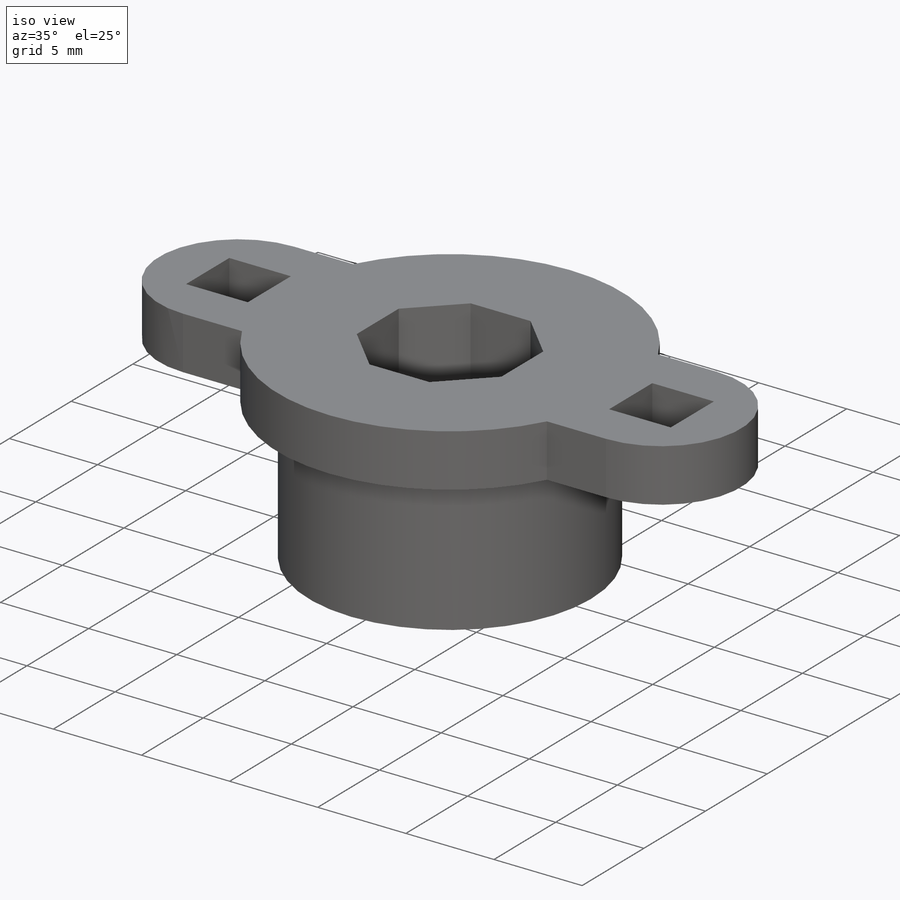
[diagram: iso view]
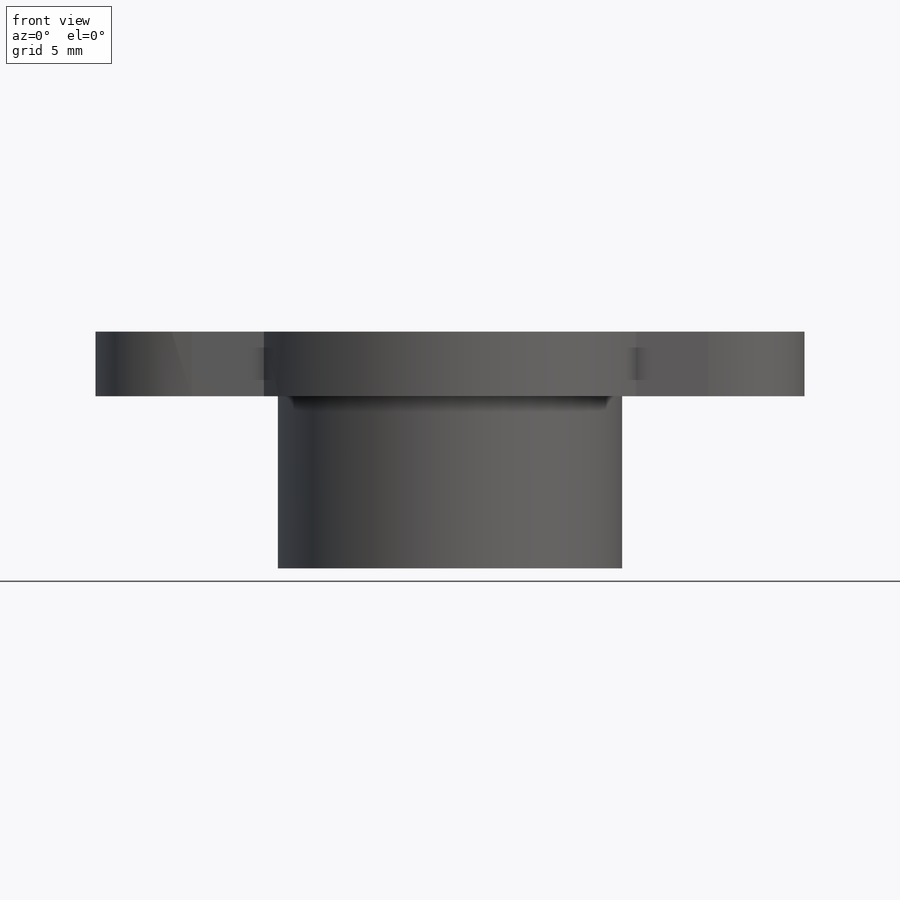
[diagram: front view]
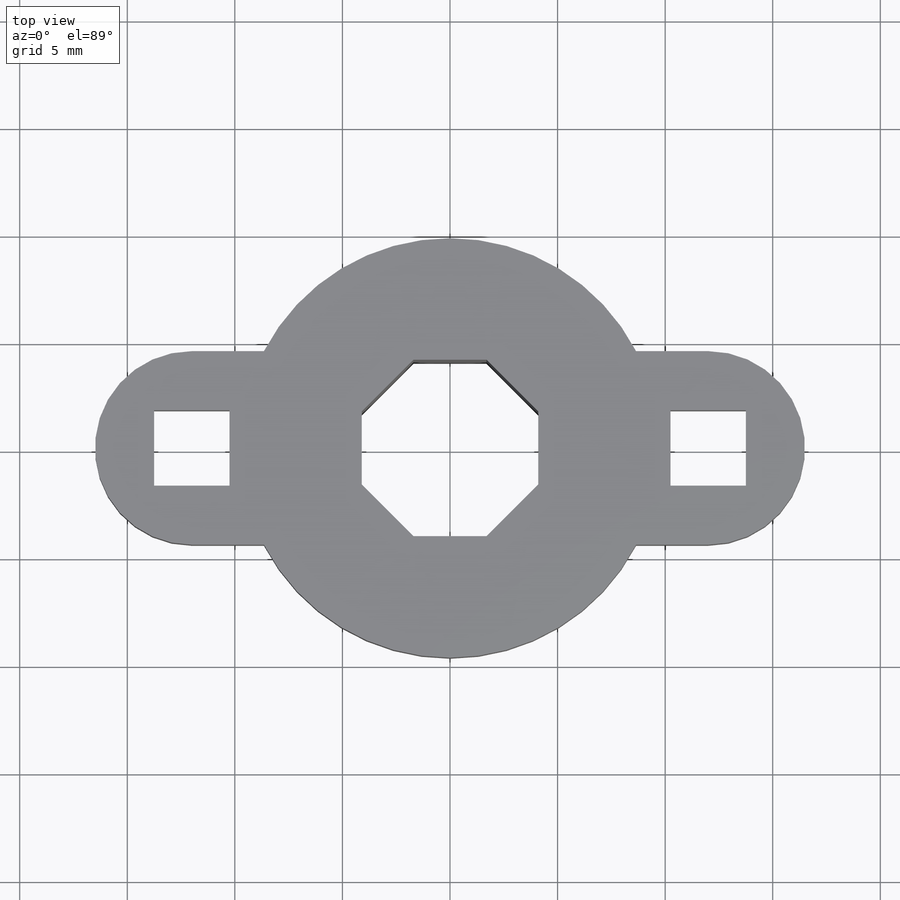
[diagram: top view]
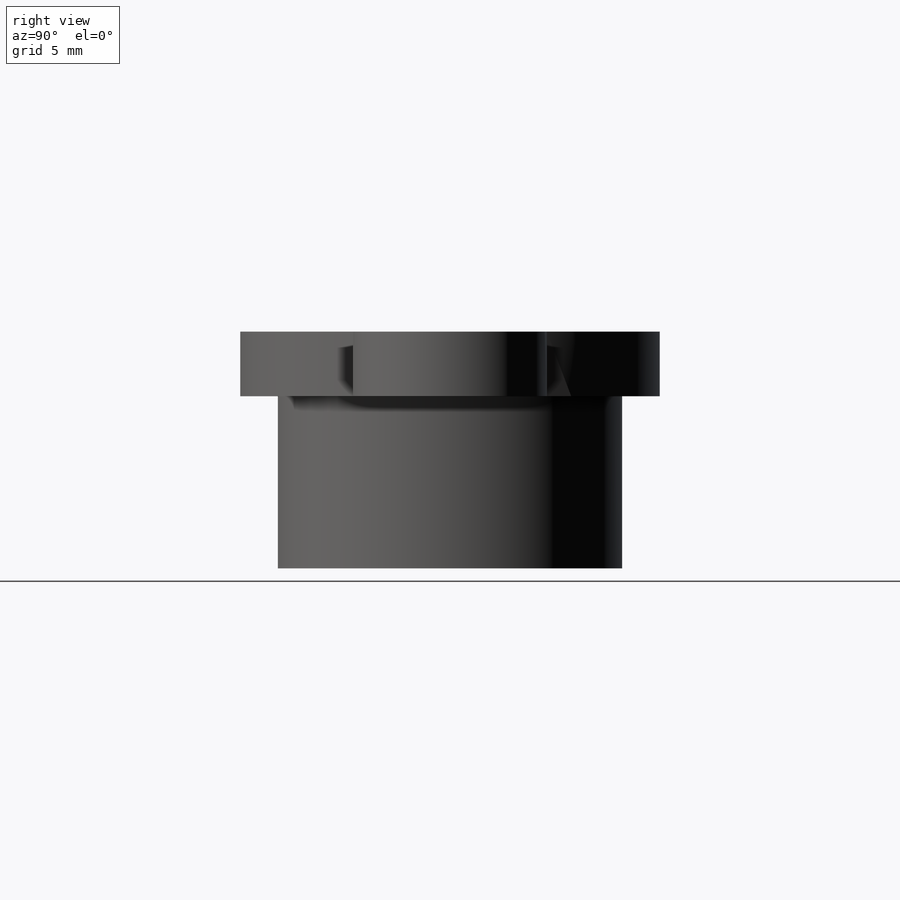
[diagram: right view]
SOLIDWORKS PART (.sldprt)
format: sldprt  version: not decoded by parser v0  size: 178,176 bytes
history: native  units: mm
features: sketch x5, extrude x3, cut_extrude x2, material x1 (+11 scaffold rows collapsed)
feature tree (22):
  scaffold x11  (default folders/planes/origin — collapsed)
  material  "Material <not specified>"
  sketch  "Sketch1"  dims[D1=16.0mm]
  extrude  "Boss-Extrude1"  Depth=8mm
  sketch  "Sketch2"  dims[D1=19.5mm]
  extrude  "Boss-Extrude2"  Depth=3mm
  sketch  "Sketch4"  dims[D1=24.0mm D2=9.0mm]
  sketch  "Sketch5"  dims[D1=3.5mm]
  extrude  "Boss-Extrude3"  [1 undecoded]
  cut_extrude  "Cut-Extrude2"  [1 undecoded]
  sketch  "Sketch3"  dims[D1=8.2mm]
  cut_extrude  "Cut-Extrude1"  [1 undecoded]
decode coverage: 7 of 10 modeling features carry decoded parameters
note: 3 parameter values undecoded
summary: no parameter record found for 3 features
note: suppression state not decoded; provenance and decode notes live in map.json
